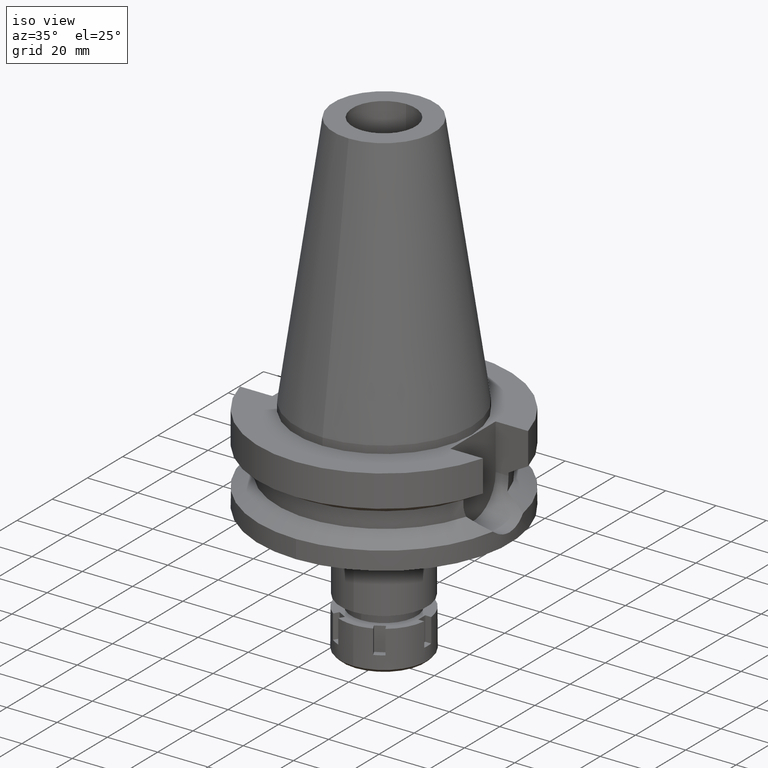
[diagram: clean part render]
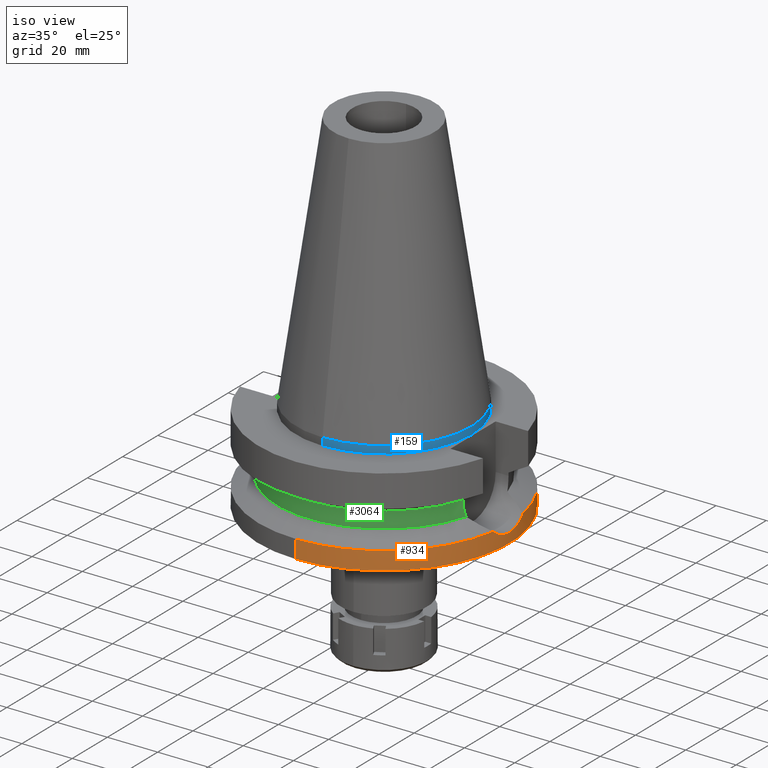
[diagram: same view with three faces highlighted in distinct colors, each labeled with its STEP entity id]
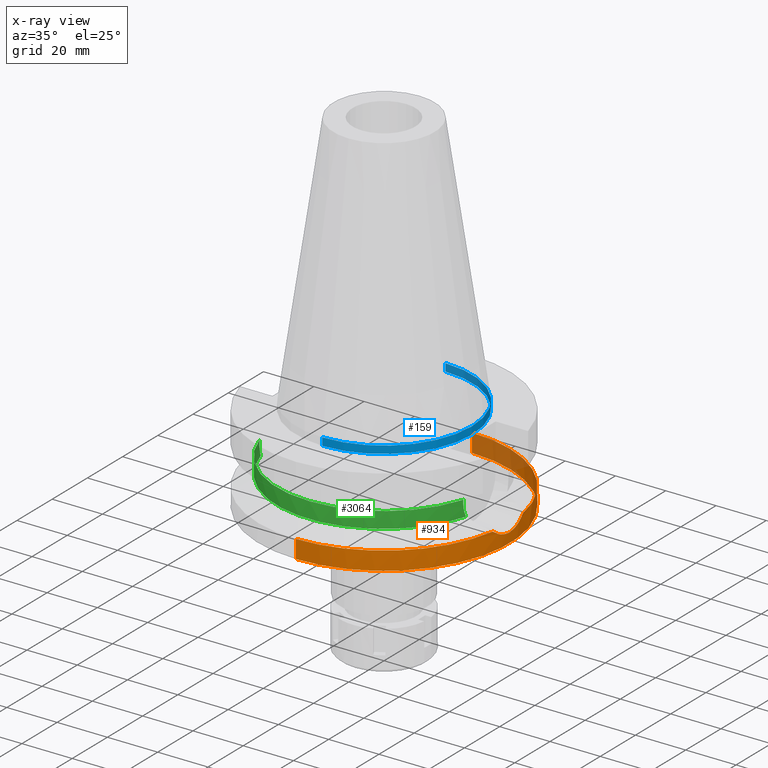
[diagram: x-ray of the same camera — body ghosted, the three highlighted faces saturated]
A machine part, iso view with three faces highlighted in distinct colors.
The next image is the same camera in x-ray (body ghosted, the three faces saturated) — at least one of them is partly hidden behind the body in this view.
Their STEP definitions:

[orange] entity #934 — the highlighted cylindrical surface (partial cylindrical patch) has radius 50 mm, axis along (0, 0, -1).
#52 = CARTESIAN_POINT ( 'NONE',  ( 0.0000000000000000000, 0.0000000000000000000, -30.73730776426999967 ) ) ;
#83 = VERTEX_POINT ( 'NONE', #784 ) ;
#103 = CARTESIAN_POINT ( 'NONE',  ( 49.66533562083423448, -5.772269753501941381, -32.63579971281848913 ) ) ;
#163 = CARTESIAN_POINT ( 'NONE',  ( 49.80631388213675592, 4.396616480804124372, -33.22463328520252901 ) ) ;
#175 = VERTEX_POINT ( 'NONE', #299 ) ;
#284 = EDGE_CURVE ( 'NONE', #1081, #1327, #1136, .T. ) ;
#299 = CARTESIAN_POINT ( 'NONE',  ( 0.0000000000000000000, 50.00000000000000000, -30.73730776426999967 ) ) ;
#319 = LINE ( 'NONE', #2783, #413 ) ;
#364 = B_SPLINE_CURVE_WITH_KNOTS ( 'NONE', 3,
 ( #1107, #1350, #2777, #781, #3545, #1067, #3306, #2505, #163, #3267, #3287, #3033, #1367, #2198, #798, #1901, #3016, #1319, #3321 ),
 .UNSPECIFIED., .F., .F.,
 ( 4, 2, 2, 1, 1, 1, 1, 1, 2, 2, 2, 4 ),
 ( 0.0000000000000000000, 0.2499999999999724110, 0.3749999999999585887, 0.4374999999999513167, 0.4687499999999478750, 0.4843749999999464317, 0.4921874999999460987, 0.4960937499999464317, 0.4980468749999469869, 0.4999999999999474865, 0.7499999999999736877, 1.000000000000000000 ),
 .UNSPECIFIED. ) ;
#378 = AXIS2_PLACEMENT_3D ( 'NONE', #2904, #1827, #2130 ) ;
#401 = CARTESIAN_POINT ( 'NONE',  ( 49.78565799084612564, -4.624875436502869697, -33.13889740142445817 ) ) ;
#413 = VECTOR ( 'NONE', #3081, 1000.000000000000000 ) ;
#420 = DIRECTION ( 'NONE',  ( 0.0000000000000000000, 0.0000000000000000000, -1.000000000000000000 ) ) ;
#502 = CARTESIAN_POINT ( 'NONE',  ( 49.86090890960442579, -3.802093052415759455, -33.45158313274191642 ) ) ;
#531 = ORIENTED_EDGE ( 'NONE', *, *, #3226, .F. ) ;
#647 = DIRECTION ( 'NONE',  ( 0.9852500129747439050, -0.1711210446826074982, 0.0000000000000000000 ) ) ;
#667 = EDGE_CURVE ( 'NONE', #2786, #83, #364, .T. ) ;
#699 = CARTESIAN_POINT ( 'NONE',  ( 49.98261383967805926, -1.500558363813069507, -33.93574400294785676 ) ) ;
#719 = VERTEX_POINT ( 'NONE', #3387 ) ;
#766 = EDGE_CURVE ( 'NONE', #719, #1081, #898, .T. ) ;
#780 = CARTESIAN_POINT ( 'NONE',  ( 49.26250064874000145, -8.556052234130000045, -30.73730776426999967 ) ) ;
#781 = CARTESIAN_POINT ( 'NONE',  ( 49.93044569078668360, 2.648572747274305694, -33.73009097169495618 ) ) ;
#784 = CARTESIAN_POINT ( 'NONE',  ( 49.26250064874000145, 8.556052234130000045, -30.73730776426999967 ) ) ;
#798 = CARTESIAN_POINT ( 'NONE',  ( 49.73975255186159927, 5.127509537116391236, -32.94811602927726568 ) ) ;
#853 = EDGE_CURVE ( 'NONE', #1109, #719, #1644, .T. ) ;
#879 = EDGE_LOOP ( 'NONE', ( #3006, #1513, #1958, #531, #1062, #2243, #2065 ) ) ;
#898 = LINE ( 'NONE', #2037, #2760 ) ;
#934 = ADVANCED_FACE ( 'NONE', ( #1809 ), #2633, .T. ) ;
#949 = CARTESIAN_POINT ( 'NONE',  ( 0.0000000000000000000, 0.0000000000000000000, -30.73730776426999967 ) ) ;
#965 = CARTESIAN_POINT ( 'NONE',  ( 49.49361717511621350, -7.116953428640194090, -31.87774830574826979 ) ) ;
#1062 = ORIENTED_EDGE ( 'NONE', *, *, #2798, .T. ) ;
#1067 = CARTESIAN_POINT ( 'NONE',  ( 49.86958544424748396, 3.607938959231448806, -33.48470105267433183 ) ) ;
#1081 = VERTEX_POINT ( 'NONE', #2160 ) ;
#1107 = CARTESIAN_POINT ( 'NONE',  ( 50.00000025826000183, 3.971629739691000439E-14, -34.00000117529000931 ) ) ;
#1109 = VERTEX_POINT ( 'NONE', #3302 ) ;
#1136 = CIRCLE ( 'NONE', #2652, 50.00000000000000000 ) ;
#1182 = CARTESIAN_POINT ( 'NONE',  ( 0.0000000000000000000, 50.00000000000000000, -38.00000000000000000 ) ) ;
#1319 = CARTESIAN_POINT ( 'NONE',  ( 49.38719528046158302, 7.838107882188747766, -31.37802667383755306 ) ) ;
#1327 = VERTEX_POINT ( 'NONE', #1182 ) ;
#1350 = CARTESIAN_POINT ( 'NONE',  ( 50.00000025826000893, 0.7410501627638681477, -33.99999999999999289 ) ) ;
#1367 = CARTESIAN_POINT ( 'NONE',  ( 49.79242228463828468, 4.551311719043213522, -33.16699222120168855 ) ) ;
#1405 = AXIS2_PLACEMENT_3D ( 'NONE', #52, #2018, #647 ) ;
#1476 = CARTESIAN_POINT ( 'NONE',  ( 49.76779264235399580, -4.813552442417533328, -33.06481752115783479 ) ) ;
#1496 = CARTESIAN_POINT ( 'NONE',  ( 49.78974543592628521, -4.580568652395377249, -33.15586994647283348 ) ) ;
#1513 = ORIENTED_EDGE ( 'NONE', *, *, #766, .T. ) ;
#1604 = CARTESIAN_POINT ( 'NONE',  ( 50.00000025826000183, 3.971629739691000439E-14, -34.00000117529000931 ) ) ;
#1644 = CIRCLE ( 'NONE', #1405, 50.00000000000000000 ) ;
#1776 = CARTESIAN_POINT ( 'NONE',  ( 49.71773619476863360, -5.301485227174733694, -32.85669905112416700 ) ) ;
#1794 = CARTESIAN_POINT ( 'NONE',  ( 50.00000025826000893, -0.7410411367583353837, -34.00000000000000711 ) ) ;
#1809 = FACE_OUTER_BOUND ( 'NONE', #879, .T. ) ;
#1827 = DIRECTION ( 'NONE',  ( 0.0000000000000000000, 0.0000000000000000000, -1.000000000000000000 ) ) ;
#1878 = CARTESIAN_POINT ( 'NONE',  ( 49.78852623004476641, -4.593834391814316298, -33.15080591701692470 ) ) ;
#1901 = CARTESIAN_POINT ( 'NONE',  ( 49.66989089094737153, 5.761879092161682259, -32.66244013531180457 ) ) ;
#1958 = ORIENTED_EDGE ( 'NONE', *, *, #284, .T. ) ;
#2018 = DIRECTION ( 'NONE',  ( 0.0000000000000000000, 0.0000000000000000000, -1.000000000000000000 ) ) ;
#2037 = CARTESIAN_POINT ( 'NONE',  ( 0.0000000000000000000, -50.00000000000000000, -30.73730776426999967 ) ) ;
#2062 = CARTESIAN_POINT ( 'NONE',  ( 49.75683425658642989, -4.924090891269428560, -33.01938925289391591 ) ) ;
#2065 = ORIENTED_EDGE ( 'NONE', *, *, #3398, .F. ) ;
#2085 = CIRCLE ( 'NONE', #3068, 50.00000000000000000 ) ;
#2130 = DIRECTION ( 'NONE',  ( 0.0000000000000000000, -1.000000000000000000, 0.0000000000000000000 ) ) ;
#2160 = CARTESIAN_POINT ( 'NONE',  ( 0.0000000000000000000, -50.00000000000000000, -38.00000000000000000 ) ) ;
#2198 = CARTESIAN_POINT ( 'NONE',  ( 49.79173955587108225, 4.558792742342924420, -33.16415544153320383 ) ) ;
#2243 = ORIENTED_EDGE ( 'NONE', *, *, #667, .F. ) ;
#2254 = CARTESIAN_POINT ( 'NONE',  ( 0.0000000000000000000, 2.583882281520999630E-14, -38.00000000000000000 ) ) ;
#2271 = B_SPLINE_CURVE_WITH_KNOTS ( 'NONE', 3,
 ( #780, #2317, #965, #2596, #103, #1776, #3266, #2062, #1476, #2889, #401, #1878, #1496, #3434, #3452, #502, #3185, #699, #1794, #1604 ),
 .UNSPECIFIED., .F., .F.,
 ( 4, 2, 2, 2, 1, 1, 1, 1, 2, 2, 2, 4 ),
 ( 0.0000000000000000000, 0.2500000000000578981, 0.3750000000000874301, 0.4375000000001020850, 0.4687500000001101341, 0.4843750000001142419, 0.4921875000001159073, 0.4960937500001164624, 0.4980468750001159073, 0.5000000000001153522, 0.7500000000000576206, 1.000000000000000000 ),
 .UNSPECIFIED. ) ;
#2317 = CARTESIAN_POINT ( 'NONE',  ( 49.38719707818322746, -7.838097531601575518, -31.37803591106731105 ) ) ;
#2505 = CARTESIAN_POINT ( 'NONE',  ( 49.82081573775742100, 4.229771872586245429, -33.28463879267050629 ) ) ;
#2520 = DIRECTION ( 'NONE',  ( 0.0000000000000000000, -2.250196262218999978E-14, -1.000000000000000000 ) ) ;
#2596 = CARTESIAN_POINT ( 'NONE',  ( 49.62583282175037880, -6.100547697646865331, -32.46631986305464324 ) ) ;
#2633 = CYLINDRICAL_SURFACE ( 'NONE', #378, 50.00000000000000000 ) ;
#2640 = DIRECTION ( 'NONE',  ( 0.0000000000000000000, 1.000000000000000000, 0.0000000000000000000 ) ) ;
#2652 = AXIS2_PLACEMENT_3D ( 'NONE', #2254, #3374, #2830 ) ;
#2760 = VECTOR ( 'NONE', #2520, 1000.000000000000000 ) ;
#2777 = CARTESIAN_POINT ( 'NONE',  ( 49.98261161639165095, 1.500598209390599624, -33.93574248250271097 ) ) ;
#2783 = CARTESIAN_POINT ( 'NONE',  ( 0.0000000000000000000, 50.00000000000000000, -30.73730776426999967 ) ) ;
#2786 = VERTEX_POINT ( 'NONE', #3438 ) ;
#2798 = EDGE_CURVE ( 'NONE', #175, #83, #2085, .T. ) ;
#2830 = DIRECTION ( 'NONE',  ( 0.0000000000000000000, -1.000000000000000000, 0.0000000000000000000 ) ) ;
#2889 = CARTESIAN_POINT ( 'NONE',  ( 49.77982781054885919, -4.687306582293074619, -33.11470790356166560 ) ) ;
#2904 = CARTESIAN_POINT ( 'NONE',  ( 0.0000000000000000000, 2.583882281520999630E-14, 110.9900000000000091 ) ) ;
#3006 = ORIENTED_EDGE ( 'NONE', *, *, #853, .T. ) ;
#3016 = CARTESIAN_POINT ( 'NONE',  ( 49.49361225524737762, 7.116990881027253302, -31.87771967107655513 ) ) ;
#3033 = CARTESIAN_POINT ( 'NONE',  ( 49.79350482948117929, 4.539420145949499386, -33.17148930652394512 ) ) ;
#3068 = AXIS2_PLACEMENT_3D ( 'NONE', #949, #420, #2640 ) ;
#3081 = DIRECTION ( 'NONE',  ( 0.0000000000000000000, 2.152361642122000014E-14, -1.000000000000000000 ) ) ;
#3185 = CARTESIAN_POINT ( 'NONE',  ( 49.91306816535025348, -3.031090856239400999, -33.66157117764783635 ) ) ;
#3226 = EDGE_CURVE ( 'NONE', #175, #1327, #319, .T. ) ;
#3266 = CARTESIAN_POINT ( 'NONE',  ( 49.73406078196487812, -5.148144078099821108, -32.92477821107087976 ) ) ;
#3267 = CARTESIAN_POINT ( 'NONE',  ( 49.79888465282288479, 4.479942984894370817, -33.19382580994893317 ) ) ;
#3287 = CARTESIAN_POINT ( 'NONE',  ( 49.79512546279007523, 4.521580902138188307, -33.17822051819116780 ) ) ;
#3302 = CARTESIAN_POINT ( 'NONE',  ( 49.26250064874000145, -8.556052234130000045, -30.73730776426999967 ) ) ;
#3306 = CARTESIAN_POINT ( 'NONE',  ( 49.84839303697045665, 3.895404147946214923, -33.39823680731314681 ) ) ;
#3321 = CARTESIAN_POINT ( 'NONE',  ( 49.26250064874000145, 8.556052234130000045, -30.73730776426999967 ) ) ;
#3374 = DIRECTION ( 'NONE',  ( 0.0000000000000000000, 0.0000000000000000000, 1.000000000000000000 ) ) ;
#3387 = CARTESIAN_POINT ( 'NONE',  ( 0.0000000000000000000, -50.00000000000000000, -30.73730776426999967 ) ) ;
#3398 = EDGE_CURVE ( 'NONE', #1109, #2786, #2271, .T. ) ;
#3434 = CARTESIAN_POINT ( 'NONE',  ( 49.79055600884969834, -4.571733192328563788, -33.15923719347269127 ) ) ;
#3438 = CARTESIAN_POINT ( 'NONE',  ( 50.00000025826000183, 3.971629739691000439E-14, -34.00000117529000931 ) ) ;
#3452 = CARTESIAN_POINT ( 'NONE',  ( 49.79081990969598337, -4.568854175397132344, -33.16033354870506855 ) ) ;
#3545 = CARTESIAN_POINT ( 'NONE',  ( 49.90870988845126988, 3.032621471015613412, -33.64335829083100293 ) ) ;

[blue] entity #159 — the highlighted cylindrical surface (partial cylindrical patch) has radius 34.925 mm, axis along (0, 0, -1).
#36 = VERTEX_POINT ( 'NONE', #435 ) ;
#87 = ORIENTED_EDGE ( 'NONE', *, *, #983, .T. ) ;
#150 = DIRECTION ( 'NONE',  ( 0.0000000000000000000, 0.0000000000000000000, -1.000000000000000000 ) ) ;
#157 = CARTESIAN_POINT ( 'NONE',  ( 0.0000000000000000000, 2.583882281520999630E-14, -3.000000000000000000 ) ) ;
#159 = ADVANCED_FACE ( 'NONE', ( #2506 ), #1123, .T. ) ;
#366 = AXIS2_PLACEMENT_3D ( 'NONE', #157, #1297, #1549 ) ;
#374 = AXIS2_PLACEMENT_3D ( 'NONE', #2645, #150, #1261 ) ;
#393 = DIRECTION ( 'NONE',  ( 0.0000000000000000000, 2.131628207279999907E-13, -1.000000000000000000 ) ) ;
#435 = CARTESIAN_POINT ( 'NONE',  ( 0.0000000000000000000, 34.92499999999999716, 3.339550858071999829E-13 ) ) ;
#576 = CARTESIAN_POINT ( 'NONE',  ( 0.0000000000000000000, 2.583882281520999630E-14, 110.9900000000000091 ) ) ;
#634 = VERTEX_POINT ( 'NONE', #1606 ) ;
#682 = EDGE_LOOP ( 'NONE', ( #3558, #87, #3380, #2641 ) ) ;
#697 = EDGE_CURVE ( 'NONE', #36, #634, #1659, .T. ) ;
#983 = EDGE_CURVE ( 'NONE', #2720, #1976, #3201, .T. ) ;
#1005 = EDGE_CURVE ( 'NONE', #1976, #634, #1453, .T. ) ;
#1108 = DIRECTION ( 'NONE',  ( 0.0000000000000000000, -1.000000000000000000, 0.0000000000000000000 ) ) ;
#1122 = CARTESIAN_POINT ( 'NONE',  ( 0.0000000000000000000, 34.92499999999999716, 3.339550858071999829E-13 ) ) ;
#1123 = CYLINDRICAL_SURFACE ( 'NONE', #1357, 34.92499999999999716 ) ;
#1261 = DIRECTION ( 'NONE',  ( 0.0000000000000000000, 1.000000000000000000, 0.0000000000000000000 ) ) ;
#1297 = DIRECTION ( 'NONE',  ( 0.0000000000000000000, 0.0000000000000000000, 1.000000000000000000 ) ) ;
#1354 = VECTOR ( 'NONE', #2215, 1000.000000000000000 ) ;
#1357 = AXIS2_PLACEMENT_3D ( 'NONE', #576, #2216, #1108 ) ;
#1453 = CIRCLE ( 'NONE', #366, 34.92499999999999716 ) ;
#1549 = DIRECTION ( 'NONE',  ( 0.0000000000000000000, -1.000000000000000000, 0.0000000000000000000 ) ) ;
#1551 = EDGE_CURVE ( 'NONE', #36, #2720, #2871, .T. ) ;
#1606 = CARTESIAN_POINT ( 'NONE',  ( 0.0000000000000000000, 34.92499999999999716, -3.000000000000000000 ) ) ;
#1659 = LINE ( 'NONE', #1122, #1354 ) ;
#1759 = CARTESIAN_POINT ( 'NONE',  ( 0.0000000000000000000, -34.92499999999999716, 3.339550858071999829E-13 ) ) ;
#1976 = VERTEX_POINT ( 'NONE', #2351 ) ;
#2215 = DIRECTION ( 'NONE',  ( 0.0000000000000000000, -2.131628207279999907E-13, -1.000000000000000000 ) ) ;
#2216 = DIRECTION ( 'NONE',  ( 0.0000000000000000000, 0.0000000000000000000, -1.000000000000000000 ) ) ;
#2337 = VECTOR ( 'NONE', #393, 1000.000000000000000 ) ;
#2351 = CARTESIAN_POINT ( 'NONE',  ( 0.0000000000000000000, -34.92499999999999716, -3.000000000000000000 ) ) ;
#2506 = FACE_OUTER_BOUND ( 'NONE', #682, .T. ) ;
#2641 = ORIENTED_EDGE ( 'NONE', *, *, #697, .F. ) ;
#2645 = CARTESIAN_POINT ( 'NONE',  ( 0.0000000000000000000, 1.847992019912999597E-14, 3.979039320256999774E-13 ) ) ;
#2720 = VERTEX_POINT ( 'NONE', #1759 ) ;
#2871 = CIRCLE ( 'NONE', #374, 34.92499999999999716 ) ;
#3201 = LINE ( 'NONE', #3506, #2337 ) ;
#3380 = ORIENTED_EDGE ( 'NONE', *, *, #1005, .T. ) ;
#3506 = CARTESIAN_POINT ( 'NONE',  ( 0.0000000000000000000, -34.92499999999999716, 3.339550858071999829E-13 ) ) ;
#3558 = ORIENTED_EDGE ( 'NONE', *, *, #1551, .T. ) ;

[green] entity #3064 — the highlighted cylindrical surface (partial cylindrical patch) has radius 42.5 mm, axis along (0, 0, -1).
#59 = CARTESIAN_POINT ( 'NONE',  ( 40.85052569294000335, -11.72538061688000077, -26.40718074535000426 ) ) ;
#116 = CARTESIAN_POINT ( 'NONE',  ( -40.66327695313978552, -12.35977177933932225, -24.67238797837626052 ) ) ;
#202 = VECTOR ( 'NONE', #1153, 1000.000000000000000 ) ;
#203 = CARTESIAN_POINT ( 'NONE',  ( -40.51083188481999997, -12.84999999999999964, -21.14999999999999858 ) ) ;
#224 = DIRECTION ( 'NONE',  ( 0.0000000000000000000, 0.0000000000000000000, 1.000000000000000000 ) ) ;
#239 = DIRECTION ( 'NONE',  ( 0.0000000000000000000, -1.000000000000000000, 0.0000000000000000000 ) ) ;
#272 = CARTESIAN_POINT ( 'NONE',  ( 40.51083188481999997, -12.84999999999999609, -21.59154171183184800 ) ) ;
#275 = VERTEX_POINT ( 'NONE', #1965 ) ;
#351 = LINE ( 'NONE', #2233, #202 ) ;
#456 = VERTEX_POINT ( 'NONE', #2080 ) ;
#496 = CARTESIAN_POINT ( 'NONE',  ( 40.56599673094050473, -12.67509433839779120, -23.26596311455569932 ) ) ;
#506 = VERTEX_POINT ( 'NONE', #1017 ) ;
#585 = CARTESIAN_POINT ( 'NONE',  ( 40.51083188481999997, -12.84999999999999964, -19.99281925464999787 ) ) ;
#654 = EDGE_LOOP ( 'NONE', ( #1177, #2045, #833, #1161, #683, #920 ) ) ;
#664 = CARTESIAN_POINT ( 'NONE',  ( -40.68244601107633684, -12.29666625011165415, -24.88710380518764254 ) ) ;
#683 = ORIENTED_EDGE ( 'NONE', *, *, #1307, .T. ) ;
#744 = EDGE_CURVE ( 'NONE', #1579, #456, #351, .T. ) ;
#792 = CARTESIAN_POINT ( 'NONE',  ( 40.65435955981745764, -12.39001970624487292, -24.66361747048510011 ) ) ;
#831 = EDGE_CURVE ( 'NONE', #2208, #275, #921, .T. ) ;
#833 = ORIENTED_EDGE ( 'NONE', *, *, #2449, .F. ) ;
#846 = DIRECTION ( 'NONE',  ( 0.9531960443486575674, -0.3023529411764863672, 0.0000000000000000000 ) ) ;
#920 = ORIENTED_EDGE ( 'NONE', *, *, #744, .F. ) ;
#921 = LINE ( 'NONE', #3078, #2166 ) ;
#975 = CARTESIAN_POINT ( 'NONE',  ( -40.63719938804874943, -12.44499676301189162, -24.35261212848416079 ) ) ;
#1017 = CARTESIAN_POINT ( 'NONE',  ( -40.85052569294000335, -11.72538061688000077, -26.40718074535000426 ) ) ;
#1044 = CARTESIAN_POINT ( 'NONE',  ( 40.59736864107516396, -12.57412283048223856, -23.79851909554432865 ) ) ;
#1095 = CYLINDRICAL_SURFACE ( 'NONE', #2791, 42.50000000000000000 ) ;
#1106 = AXIS2_PLACEMENT_3D ( 'NONE', #3327, #224, #1309 ) ;
#1153 = DIRECTION ( 'NONE',  ( -9.641631887889147307E-07, 3.039617602564048755E-06, 0.9999999999949156226 ) ) ;
#1161 = ORIENTED_EDGE ( 'NONE', *, *, #831, .F. ) ;
#1177 = ORIENTED_EDGE ( 'NONE', *, *, #1805, .F. ) ;
#1230 = CARTESIAN_POINT ( 'NONE',  ( -40.60613670648186968, -12.54578755583301231, -23.92964714799551729 ) ) ;
#1307 = EDGE_CURVE ( 'NONE', #2208, #456, #1695, .T. ) ;
#1309 = DIRECTION ( 'NONE',  ( 0.0000000000000000000, -1.000000000000000000, 0.0000000000000000000 ) ) ;
#1375 = CARTESIAN_POINT ( 'NONE',  ( 40.85052569294000335, -11.72538061688000077, -26.40718074535000426 ) ) ;
#1430 = B_SPLINE_CURVE_WITH_KNOTS ( 'NONE', 3,
 ( #3554, #272, #2204, #2716, #2453, #496, #1595, #2156, #3608, #3571, #1044, #792, #3590, #1375 ),
 .UNSPECIFIED., .F., .F.,
 ( 4, 2, 2, 1, 1, 2, 2, 4 ),
 ( 0.0000000000000000000, 0.2499999999999892308, 0.3749999999999846789, 0.4374999999999822919, 0.4687499999999819589, 0.4843749999999820144, 0.4999999999999820144, 1.000000000000000000 ),
 .UNSPECIFIED. ) ;
#1490 = CARTESIAN_POINT ( 'NONE',  ( -40.74530522851353709, -12.08734613714425876, -25.53455770065779618 ) ) ;
#1526 = CARTESIAN_POINT ( 'NONE',  ( -40.51083188482000708, -12.84999999999998543, -22.03308001794205140 ) ) ;
#1579 = VERTEX_POINT ( 'NONE', #203 ) ;
#1595 = CARTESIAN_POINT ( 'NONE',  ( 40.57496101843507574, -12.64633755876298693, -23.43369807928904081 ) ) ;
#1695 = CIRCLE ( 'NONE', #2571, 42.50000000000002132 ) ;
#1805 = EDGE_CURVE ( 'NONE', #506, #1579, #3017, .T. ) ;
#1808 = CARTESIAN_POINT ( 'NONE',  ( -40.54025086427707691, -12.75862911298345992, -22.93149008171479508 ) ) ;
#1965 = CARTESIAN_POINT ( 'NONE',  ( 40.51083188481999997, -12.84999999999999964, -21.14999999999999858 ) ) ;
#2045 = ORIENTED_EDGE ( 'NONE', *, *, #2464, .T. ) ;
#2080 = CARTESIAN_POINT ( 'NONE',  ( -40.51083300050000702, -12.84999648268999906, -19.99284624754000106 ) ) ;
#2093 = CARTESIAN_POINT ( 'NONE',  ( -40.62482961095668088, -12.48525133053583147, -24.19329755006814153 ) ) ;
#2156 = CARTESIAN_POINT ( 'NONE',  ( 40.58662608485430923, -12.60878154790535000, -23.62927549513685221 ) ) ;
#2166 = VECTOR ( 'NONE', #2549, 1000.000000000000000 ) ;
#2204 = CARTESIAN_POINT ( 'NONE',  ( 40.51818719763606680, -12.82722225432308960, -22.03686830847411215 ) ) ;
#2208 = VERTEX_POINT ( 'NONE', #585 ) ;
#2233 = CARTESIAN_POINT ( 'NONE',  ( -40.51083188481999997, -12.84999999999999964, -21.14999999999999858 ) ) ;
#2327 = CARTESIAN_POINT ( 'NONE',  ( -40.60257095199571609, -12.55731571366193577, -23.87709474182198122 ) ) ;
#2434 = FACE_OUTER_BOUND ( 'NONE', #654, .T. ) ;
#2435 = CIRCLE ( 'NONE', #1106, 42.50000000000000000 ) ;
#2449 = EDGE_CURVE ( 'NONE', #275, #3133, #1430, .T. ) ;
#2451 = DIRECTION ( 'NONE',  ( 0.0000000000000000000, 0.0000000000000000000, -1.000000000000000000 ) ) ;
#2453 = CARTESIAN_POINT ( 'NONE',  ( 40.54944727710435615, -12.72806419699665526, -22.93049076237651107 ) ) ;
#2464 = EDGE_CURVE ( 'NONE', #506, #3133, #2435, .T. ) ;
#2549 = DIRECTION ( 'NONE',  ( -9.676257812999799855E-07, -3.050533756938935075E-06, -0.9999999999948789853 ) ) ;
#2571 = AXIS2_PLACEMENT_3D ( 'NONE', #3381, #3366, #846 ) ;
#2650 = CARTESIAN_POINT ( 'NONE',  ( -40.51083188481999997, -12.84999999999999964, -21.14999999999999858 ) ) ;
#2712 = CARTESIAN_POINT ( 'NONE',  ( 0.0000000000000000000, 2.583882281520999630E-14, 110.9900000000000091 ) ) ;
#2716 = CARTESIAN_POINT ( 'NONE',  ( 40.54025313608426018, -12.75731810731625337, -22.70684014861359756 ) ) ;
#2791 = AXIS2_PLACEMENT_3D ( 'NONE', #2712, #2451, #239 ) ;
#3017 = B_SPLINE_CURVE_WITH_KNOTS ( 'NONE', 3,
 ( #3153, #3466, #1490, #664, #116, #975, #2093, #3200, #1230, #2327, #3446, #1808, #1526, #2650 ),
 .UNSPECIFIED., .F., .F.,
 ( 4, 2, 2, 1, 1, 2, 2, 4 ),
 ( 0.0000000000000000000, 0.2499999999999908407, 0.3749999999999861222, 0.4374999999999826250, 0.4687499999999819034, 0.4843749999999814593, 0.4999999999999810707, 1.000000000000000000 ),
 .UNSPECIFIED. ) ;
#3064 = ADVANCED_FACE ( 'NONE', ( #2434 ), #1095, .T. ) ;
#3078 = CARTESIAN_POINT ( 'NONE',  ( 40.51083300450999758, -12.84999647006000068, -19.99284634447999665 ) ) ;
#3133 = VERTEX_POINT ( 'NONE', #59 ) ;
#3153 = CARTESIAN_POINT ( 'NONE',  ( -40.85052569294000335, -11.72538061688000077, -26.40718074535000426 ) ) ;
#3200 = CARTESIAN_POINT ( 'NONE',  ( -40.61156896389279325, -12.52821669071489552, -24.00856318994577876 ) ) ;
#3327 = CARTESIAN_POINT ( 'NONE',  ( 0.0000000000000000000, 0.0000000000000000000, -26.40718074535000426 ) ) ;
#3366 = DIRECTION ( 'NONE',  ( 0.0000000000000000000, 0.0000000000000000000, -1.000000000000000000 ) ) ;
#3381 = CARTESIAN_POINT ( 'NONE',  ( 0.0000000000000000000, 1.006319759053999930E-14, -19.99281925464999787 ) ) ;
#3446 = CARTESIAN_POINT ( 'NONE',  ( -40.60092750940732031, -12.56262654778352506, -23.85254111937892674 ) ) ;
#3466 = CARTESIAN_POINT ( 'NONE',  ( -40.79434743164174648, -11.92110232362476019, -25.97065181136010992 ) ) ;
#3554 = CARTESIAN_POINT ( 'NONE',  ( 40.51083188481999997, -12.84999999999999964, -21.14999999999999858 ) ) ;
#3571 = CARTESIAN_POINT ( 'NONE',  ( 40.59544671389546977, -12.58032818125506580, -23.76890350620163517 ) ) ;
#3590 = CARTESIAN_POINT ( 'NONE',  ( 40.73816957792652005, -12.11682261037108965, -25.53412604446967649 ) ) ;
#3608 = CARTESIAN_POINT ( 'NONE',  ( 40.59188398425018818, -12.59182459259147002, -23.71305796896682594 ) ) ;